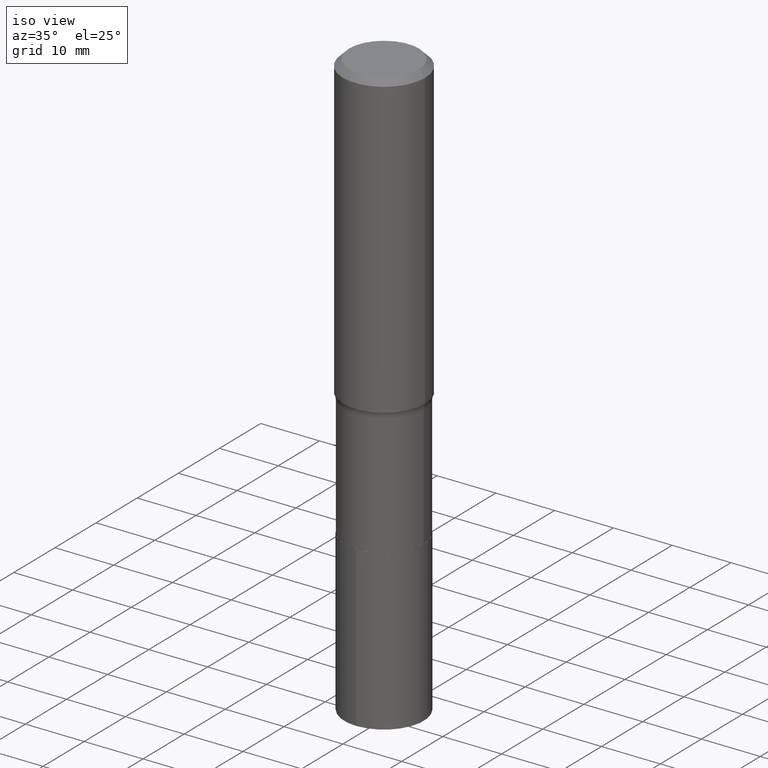
[diagram: clean part render]
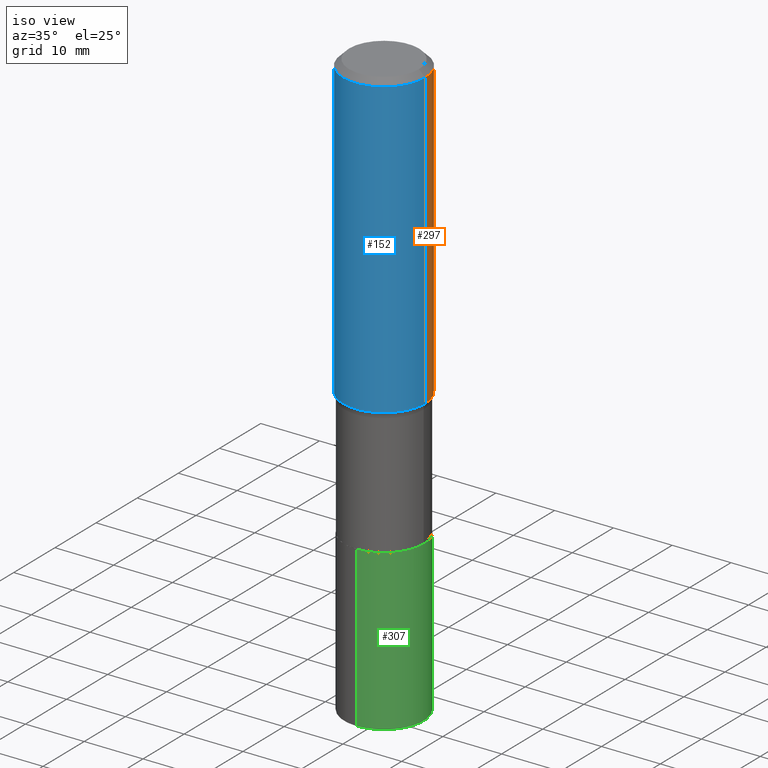
[diagram: same view with three faces highlighted in distinct colors, each labeled with its STEP entity id]
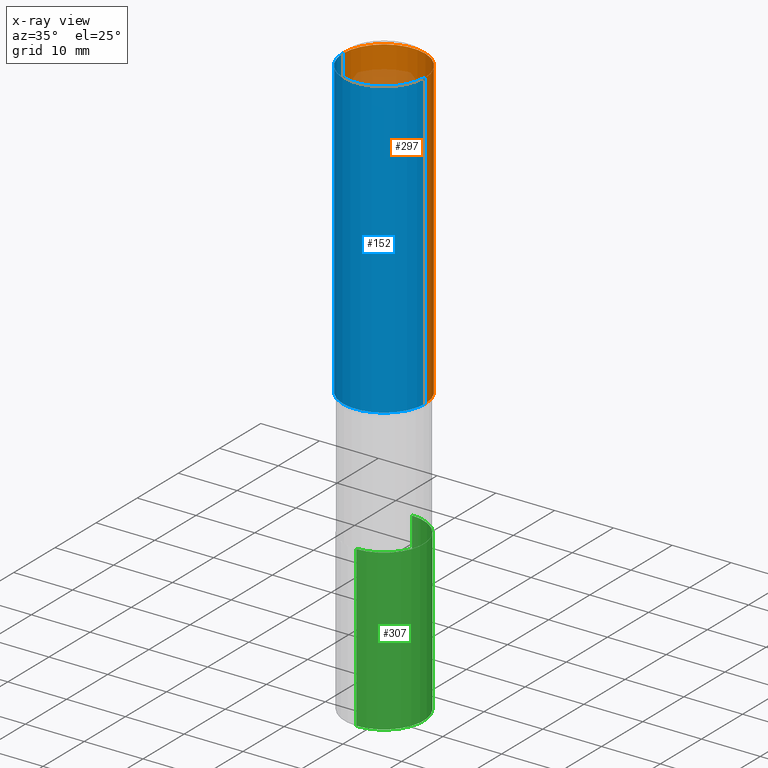
[diagram: x-ray of the same camera — body ghosted, the three highlighted faces saturated]
A machine part, iso view with three faces highlighted in distinct colors.
The next image is the same camera in x-ray (body ghosted, the three faces saturated) — at least one of them is partly hidden behind the body in this view.
Their STEP definitions:

[orange] entity #297 — the highlighted cylindrical surface (partial cylindrical patch) has radius 7.0002 mm, axis along (-0, 0, 1).
#18 = ORIENTED_EDGE ( 'NONE', *, *, #323, .T. ) ;
#22 = CARTESIAN_POINT ( 'NONE',  ( -0.2756000000000002892, -5.073037810357367887E-15, -2.013842523483722502 ) ) ;
#32 = DIRECTION ( 'NONE',  ( -2.445468806185136597E-29, 3.491481338843145583E-15, 1.000000000000000000 ) ) ;
#50 = VERTEX_POINT ( 'NONE', #360 ) ;
#57 = VERTEX_POINT ( 'NONE', #147 ) ;
#60 = EDGE_CURVE ( 'NONE', #57, #216, #98, .T. ) ;
#78 = EDGE_LOOP ( 'NONE', ( #230, #18, #254, #192 ) ) ;
#81 = VECTOR ( 'NONE', #201, 39.37007874015748143 ) ;
#87 = CARTESIAN_POINT ( 'NONE',  ( -0.2756000000000000116, -1.629559934575154235E-15, -0.04134000000000025848 ) ) ;
#88 = VERTEX_POINT ( 'NONE', #87 ) ;
#98 = CIRCLE ( 'NONE', #368, 0.2756000000000002892 ) ;
#101 = CYLINDRICAL_SURFACE ( 'NONE', #426, 0.2756000000000001227 ) ;
#106 = CIRCLE ( 'NONE', #369, 0.2756000000000000116 ) ;
#116 = EDGE_CURVE ( 'NONE', #57, #50, #278, .T. ) ;
#124 = CARTESIAN_POINT ( 'NONE',  ( 0.2756000000000001227, -1.924504513970336137E-15, 1.343874319409360548E-29 ) ) ;
#131 = CARTESIAN_POINT ( 'NONE',  ( -0.2756000000000001227, 1.958255779754836984E-15, -1.355658510874252567E-29 ) ) ;
#137 = FACE_OUTER_BOUND ( 'NONE', #78, .T. ) ;
#138 = DIRECTION ( 'NONE',  ( 1.000000000000000000, -6.982962677686267499E-15, 4.876176775795935793E-29 ) ) ;
#139 = CARTESIAN_POINT ( 'NONE',  ( 4.924789071748601638E-29, -7.031293590112206054E-15, -2.013842523483722502 ) ) ;
#142 = DIRECTION ( 'NONE',  ( -2.445468806185136597E-29, 3.491481338843145583E-15, 1.000000000000000000 ) ) ;
#147 = CARTESIAN_POINT ( 'NONE',  ( 0.2756000000000002892, -8.955798104082544164E-15, -2.013842523483722502 ) ) ;
#175 = CARTESIAN_POINT ( 'NONE',  ( 0.000000000000000000, 0.000000000000000000, 0.000000000000000000 ) ) ;
#192 = ORIENTED_EDGE ( 'NONE', *, *, #116, .F. ) ;
#201 = DIRECTION ( 'NONE',  ( -2.445468806185136877E-29, 3.491481338843145188E-15, 1.000000000000000000 ) ) ;
#216 = VERTEX_POINT ( 'NONE', #22 ) ;
#230 = ORIENTED_EDGE ( 'NONE', *, *, #60, .T. ) ;
#249 = LINE ( 'NONE', #131, #467 ) ;
#254 = ORIENTED_EDGE ( 'NONE', *, *, #293, .F. ) ;
#278 = LINE ( 'NONE', #124, #81 ) ;
#286 = DIRECTION ( 'NONE',  ( -2.445468806185136877E-29, 3.491481338843145188E-15, 1.000000000000000000 ) ) ;
#289 = DIRECTION ( 'NONE',  ( 1.000000000000000000, -6.982962677686267499E-15, 0.000000000000000000 ) ) ;
#293 = EDGE_CURVE ( 'NONE', #50, #88, #106, .T. ) ;
#297 = ADVANCED_FACE ( 'NONE', ( #137 ), #101, .T. ) ;
#323 = EDGE_CURVE ( 'NONE', #216, #88, #249, .T. ) ;
#360 = CARTESIAN_POINT ( 'NONE',  ( 0.2756000000000000116, -2.068842352518111732E-15, -0.04134000000000025848 ) ) ;
#368 = AXIS2_PLACEMENT_3D ( 'NONE', #139, #142, #433 ) ;
#369 = AXIS2_PLACEMENT_3D ( 'NONE', #460, #32, #289 ) ;
#426 = AXIS2_PLACEMENT_3D ( 'NONE', #175, #465, #138 ) ;
#433 = DIRECTION ( 'NONE',  ( 1.000000000000000000, -6.982962677686270655E-15, 0.000000000000000000 ) ) ;
#460 = CARTESIAN_POINT ( 'NONE',  ( 1.010956804476941872E-30, -1.443378385477765316E-16, -0.04134000000000025848 ) ) ;
#465 = DIRECTION ( 'NONE',  ( -2.445468806185136597E-29, 3.491481338843145583E-15, 1.000000000000000000 ) ) ;
#467 = VECTOR ( 'NONE', #286, 39.37007874015748143 ) ;

[blue] entity #152 — the highlighted cylindrical surface (partial cylindrical patch) has radius 7.0002 mm, axis along (-0, 0, 1).
#17 = CARTESIAN_POINT ( 'NONE',  ( 0.000000000000000000, 0.000000000000000000, 0.000000000000000000 ) ) ;
#22 = CARTESIAN_POINT ( 'NONE',  ( -0.2756000000000002892, -5.073037810357367887E-15, -2.013842523483722502 ) ) ;
#29 = AXIS2_PLACEMENT_3D ( 'NONE', #397, #76, #401 ) ;
#50 = VERTEX_POINT ( 'NONE', #360 ) ;
#53 = CYLINDRICAL_SURFACE ( 'NONE', #130, 0.2756000000000001227 ) ;
#57 = VERTEX_POINT ( 'NONE', #147 ) ;
#71 = ORIENTED_EDGE ( 'NONE', *, *, #116, .T. ) ;
#76 = DIRECTION ( 'NONE',  ( -2.445468806185136597E-29, 3.491481338843145583E-15, 1.000000000000000000 ) ) ;
#81 = VECTOR ( 'NONE', #201, 39.37007874015748143 ) ;
#87 = CARTESIAN_POINT ( 'NONE',  ( -0.2756000000000000116, -1.629559934575154235E-15, -0.04134000000000025848 ) ) ;
#88 = VERTEX_POINT ( 'NONE', #87 ) ;
#112 = ORIENTED_EDGE ( 'NONE', *, *, #456, .F. ) ;
#116 = EDGE_CURVE ( 'NONE', #57, #50, #278, .T. ) ;
#124 = CARTESIAN_POINT ( 'NONE',  ( 0.2756000000000001227, -1.924504513970336137E-15, 1.343874319409360548E-29 ) ) ;
#130 = AXIS2_PLACEMENT_3D ( 'NONE', #17, #274, #415 ) ;
#131 = CARTESIAN_POINT ( 'NONE',  ( -0.2756000000000001227, 1.958255779754836984E-15, -1.355658510874252567E-29 ) ) ;
#147 = CARTESIAN_POINT ( 'NONE',  ( 0.2756000000000002892, -8.955798104082544164E-15, -2.013842523483722502 ) ) ;
#152 = ADVANCED_FACE ( 'NONE', ( #421 ), #53, .T. ) ;
#155 = EDGE_LOOP ( 'NONE', ( #444, #403, #71, #112 ) ) ;
#156 = CARTESIAN_POINT ( 'NONE',  ( 4.924789071748601638E-29, -7.031293590112206054E-15, -2.013842523483722502 ) ) ;
#174 = CIRCLE ( 'NONE', #29, 0.2756000000000000116 ) ;
#195 = AXIS2_PLACEMENT_3D ( 'NONE', #156, #327, #364 ) ;
#201 = DIRECTION ( 'NONE',  ( -2.445468806185136877E-29, 3.491481338843145188E-15, 1.000000000000000000 ) ) ;
#216 = VERTEX_POINT ( 'NONE', #22 ) ;
#224 = EDGE_CURVE ( 'NONE', #216, #57, #449, .T. ) ;
#249 = LINE ( 'NONE', #131, #467 ) ;
#274 = DIRECTION ( 'NONE',  ( -2.445468806185136597E-29, 3.491481338843145583E-15, 1.000000000000000000 ) ) ;
#278 = LINE ( 'NONE', #124, #81 ) ;
#286 = DIRECTION ( 'NONE',  ( -2.445468806185136877E-29, 3.491481338843145188E-15, 1.000000000000000000 ) ) ;
#323 = EDGE_CURVE ( 'NONE', #216, #88, #249, .T. ) ;
#327 = DIRECTION ( 'NONE',  ( -2.445468806185136597E-29, 3.491481338843145583E-15, 1.000000000000000000 ) ) ;
#360 = CARTESIAN_POINT ( 'NONE',  ( 0.2756000000000000116, -2.068842352518111732E-15, -0.04134000000000025848 ) ) ;
#364 = DIRECTION ( 'NONE',  ( 1.000000000000000000, -6.982962677686270655E-15, 0.000000000000000000 ) ) ;
#397 = CARTESIAN_POINT ( 'NONE',  ( 1.010956804476941872E-30, -1.443378385477765316E-16, -0.04134000000000025848 ) ) ;
#401 = DIRECTION ( 'NONE',  ( 1.000000000000000000, -6.982962677686267499E-15, 0.000000000000000000 ) ) ;
#403 = ORIENTED_EDGE ( 'NONE', *, *, #224, .T. ) ;
#415 = DIRECTION ( 'NONE',  ( 1.000000000000000000, -6.982962677686267499E-15, 4.876176775795935793E-29 ) ) ;
#421 = FACE_OUTER_BOUND ( 'NONE', #155, .T. ) ;
#444 = ORIENTED_EDGE ( 'NONE', *, *, #323, .F. ) ;
#449 = CIRCLE ( 'NONE', #195, 0.2756000000000002892 ) ;
#456 = EDGE_CURVE ( 'NONE', #88, #50, #174, .T. ) ;
#467 = VECTOR ( 'NONE', #286, 39.37007874015748143 ) ;

[green] entity #307 — the highlighted cylindrical surface (partial cylindrical patch) has radius 6.75 mm, axis along (-0, 0, 1).
#1 = DIRECTION ( 'NONE',  ( -2.445918634677029817E-29, 3.490837158840106118E-15, 1.000000000000000000 ) ) ;
#19 = AXIS2_PLACEMENT_3D ( 'NONE', #61, #66, #203 ) ;
#30 = CYLINDRICAL_SURFACE ( 'NONE', #19, 0.2657499999999999862 ) ;
#42 = EDGE_CURVE ( 'NONE', #86, #45, #431, .T. ) ;
#45 = VERTEX_POINT ( 'NONE', #204 ) ;
#61 = CARTESIAN_POINT ( 'NONE',  ( 7.008713598526600652E-29, -1.000658551712445604E-14, -2.866000000000000103 ) ) ;
#66 = DIRECTION ( 'NONE',  ( -2.445918634677030097E-29, 3.490837158840106118E-15, 1.000000000000000000 ) ) ;
#84 = EDGE_CURVE ( 'NONE', #164, #86, #270, .T. ) ;
#86 = VERTEX_POINT ( 'NONE', #374 ) ;
#96 = DIRECTION ( 'NONE',  ( -6.982962677686266711E-15, -1.000000000000000000, 4.111906669673397387E-15 ) ) ;
#115 = ORIENTED_EDGE ( 'NONE', *, *, #363, .T. ) ;
#132 = ORIENTED_EDGE ( 'NONE', *, *, #84, .F. ) ;
#134 = FACE_OUTER_BOUND ( 'NONE', #339, .T. ) ;
#141 = VERTEX_POINT ( 'NONE', #443 ) ;
#164 = VERTEX_POINT ( 'NONE', #309 ) ;
#183 = DIRECTION ( 'NONE',  ( -2.445918634677030097E-29, 3.490837158840106118E-15, 1.000000000000000000 ) ) ;
#203 = DIRECTION ( 'NONE',  ( -6.982962677686266711E-15, -1.000000000000000000, 4.111906669673397387E-15 ) ) ;
#204 = CARTESIAN_POINT ( 'NONE',  ( 1.888267320282562387E-15, 0.2657499999999899942, -2.866000000000000991 ) ) ;
#231 = CARTESIAN_POINT ( 'NONE',  ( -1.855722331595055138E-15, -0.2657500000000099782, -2.865999999999998771 ) ) ;
#235 = ORIENTED_EDGE ( 'NONE', *, *, #425, .T. ) ;
#247 = CIRCLE ( 'NONE', #399, 0.2657499999999999862 ) ;
#256 = CARTESIAN_POINT ( 'NONE',  ( 9.628292456265704301E-29, -1.374527211424221215E-14, -3.937000000000001165 ) ) ;
#262 = ORIENTED_EDGE ( 'NONE', *, *, #42, .F. ) ;
#270 = LINE ( 'NONE', #231, #303 ) ;
#285 = CARTESIAN_POINT ( 'NONE',  ( 1.888267320282535960E-15, 0.2657499999999899942, -2.866000000000000991 ) ) ;
#290 = DIRECTION ( 'NONE',  ( -2.445918634677030097E-29, 3.490837158840106118E-15, 1.000000000000000000 ) ) ;
#303 = VECTOR ( 'NONE', #405, 39.37007874015748143 ) ;
#307 = ADVANCED_FACE ( 'NONE', ( #134 ), #30, .T. ) ;
#309 = CARTESIAN_POINT ( 'NONE',  ( -1.855722331595028711E-15, -0.2657500000000137530, -3.937000000000000277 ) ) ;
#312 = AXIS2_PLACEMENT_3D ( 'NONE', #332, #290, #96 ) ;
#332 = CARTESIAN_POINT ( 'NONE',  ( 7.008713598526600652E-29, -1.000658551712445604E-14, -2.866000000000000103 ) ) ;
#339 = EDGE_LOOP ( 'NONE', ( #235, #115, #262, #132 ) ) ;
#356 = LINE ( 'NONE', #285, #420 ) ;
#363 = EDGE_CURVE ( 'NONE', #141, #45, #356, .T. ) ;
#370 = DIRECTION ( 'NONE',  ( -6.982962677686266711E-15, -1.000000000000000000, 4.111906669673397387E-15 ) ) ;
#374 = CARTESIAN_POINT ( 'NONE',  ( -1.855722331595055138E-15, -0.2657500000000099782, -2.865999999999998771 ) ) ;
#399 = AXIS2_PLACEMENT_3D ( 'NONE', #256, #183, #370 ) ;
#405 = DIRECTION ( 'NONE',  ( -2.445918634677029817E-29, 3.490837158840106118E-15, 1.000000000000000000 ) ) ;
#420 = VECTOR ( 'NONE', #1, 39.37007874015748143 ) ;
#425 = EDGE_CURVE ( 'NONE', #164, #141, #247, .T. ) ;
#431 = CIRCLE ( 'NONE', #312, 0.2657499999999999862 ) ;
#443 = CARTESIAN_POINT ( 'NONE',  ( 1.888267320282549371E-15, 0.2657499999999862195, -3.937000000000002498 ) ) ;